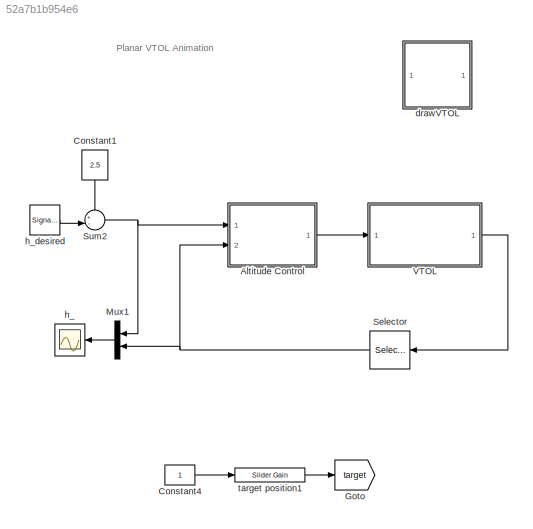
MODEL slx_52a7b1b954e6
KIND model
CONFIG AbsTol = auto
CONFIG EnableMultiTasking = on
CONFIG FixedStep = auto
CONFIG InitFcn = addpath ./..\nVTOL_param\nVTOLParamHW7
CONFIG MaxStep = auto
CONFIG MinStep = auto
CONFIG RelTol = 1e-3
CONFIG SampleTimeConstraint = Unconstrained
CONFIG Solver = ode45
CONFIG SolverName = ode45
CONFIG StartTime = 0.0
CONFIG StopTime = P.t_end
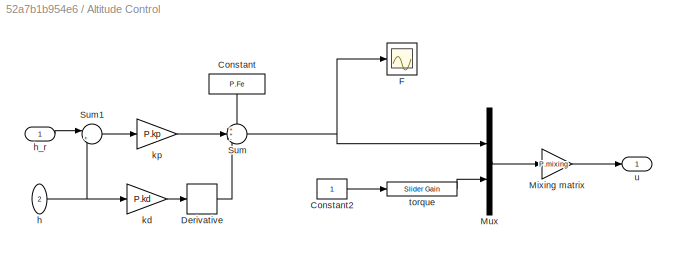
BLOCK [SubSystem] Altitude Control
  Ports = [2, 1]
  RequestExecContextInheritance = off
  Variant = off
BLOCK [Constant] Altitude Control/Constant
  Value = P.Fe
BLOCK [Constant] Altitude Control/Constant2
BLOCK [Derivative] Altitude Control/Derivative
BLOCK [Scope] Altitude Control/F
  NumInputPorts = 1
  Ports = [1]
  ScopeSpecificationString = Simulink.scopes.TimeScopeBlockCfg('CurrentConfiguration', extmgr.ConfigurationSet(extmgr.Configuration('Core','General UI',true),extmgr.Configuration('Core','Source UI',true),extmgr.Configuration('Sources','WiredSimulink',true,'DataLoggingSaveFormat','StructureWithTime','DataLoggingDecimation','1','DataLoggingDecimateData',true),extmgr.Configuration('Visuals','Time Domain',true,'SerializedDisplays...<+1656ch>
BLOCK [Gain] Altitude Control/Mixing matrix
  Gain = P.mixing
  Multiplication = Matrix(K*u)
  OutDataTypeStr = Inherit: Inherit via internal rule
  ParamDataTypeStr = Inherit: Inherit via internal rule
  SaturateOnIntegerOverflow = off
BLOCK [Mux] Altitude Control/Mux
  DisplayOption = bar
  Inputs = 2
  Ports = [2, 1]
BLOCK [Sum] Altitude Control/Sum
  IconShape = round
  InputSameDT = off
  Inputs = ++-
  OutDataTypeStr = Inherit: Inherit via internal rule
  Ports = [3, 1]
  SaturateOnIntegerOverflow = off
BLOCK [Sum] Altitude Control/Sum1
  IconShape = round
  InputSameDT = off
  Inputs = |+-
  OutDataTypeStr = Inherit: Inherit via internal rule
  Ports = [2, 1]
  SaturateOnIntegerOverflow = off
BLOCK [Inport] Altitude Control/h
  IconDisplay = Port number
  Port = 2
BLOCK [Inport] Altitude Control/h_r
  IconDisplay = Port number
BLOCK [Gain] Altitude Control/kd
  Gain = P.kd
  OutDataTypeStr = Inherit: Inherit via internal rule
  ParamDataTypeStr = Inherit: Inherit via internal rule
  SaturateOnIntegerOverflow = off
BLOCK [Gain] Altitude Control/kp
  Gain = P.kp
  OutDataTypeStr = Inherit: Inherit via internal rule
  ParamDataTypeStr = Inherit: Inherit via internal rule
  SaturateOnIntegerOverflow = off
BLOCK [Reference] Altitude Control/torque  REF=simulink/Math
Operations/Slider
Gain
  Ports = [1, 1]
  SourceBlock = simulink/Math\nOperations/Slider\nGain
  SourceType = Slider Gain
BLOCK [Outport] Altitude Control/u
  IconDisplay = Port number
BLOCK [Constant] Constant1
  Value = 2.5
BLOCK [Constant] Constant4
BLOCK [Goto] Goto
  GotoTag = target
  TagVisibility = global
BLOCK [Mux] Mux1
  DisplayOption = bar
  Inputs = 2
  Ports = [2, 1]
BLOCK [Selector] Selector
  IndexOptions = Index vector (dialog)
  Indices = [2]
  InputPortWidth = 3
  OutputSizes = 1
  Ports = [1, 1]
BLOCK [Sum] Sum2
  IconShape = round
  InputSameDT = off
  Inputs = +-|
  OutDataTypeStr = Inherit: Inherit via internal rule
  Ports = [2, 1]
  SaturateOnIntegerOverflow = off
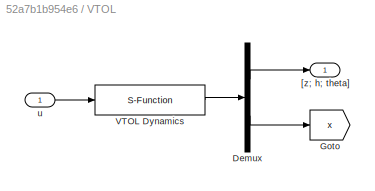
BLOCK [SubSystem] VTOL
  Ports = [1, 1]
  RequestExecContextInheritance = off
  Variant = off
BLOCK [Demux] VTOL/Demux
  DisplayOption = bar
  Outputs = [3;6]
  Ports = [1, 2]
BLOCK [Goto] VTOL/Goto
  GotoTag = x
  TagVisibility = global
BLOCK [S-Function] VTOL/VTOL Dynamics
  EnableBusSupport = off
  FunctionName = VTOL_dynamics
  Parameters = P
  Ports = [1, 1]
  SFcnIsStateOwnerBlock = off
  SFunctionDeploymentMode = off
BLOCK [Outport] VTOL/[z; h; theta]
  IconDisplay = Port number
BLOCK [Inport] VTOL/u
  IconDisplay = Port number
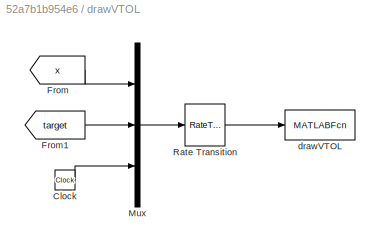
BLOCK [SubSystem] drawVTOL
  Ports = []
  RequestExecContextInheritance = off
  Variant = off
BLOCK [Clock] drawVTOL/Clock
BLOCK [From] drawVTOL/From
  GotoTag = x
  TagVisibility = global
BLOCK [From] drawVTOL/From1
  GotoTag = target
  TagVisibility = global
BLOCK [Mux] drawVTOL/Mux
  DisplayOption = bar
  Inputs = 3
  Ports = [3, 1]
BLOCK [RateTransition] drawVTOL/Rate Transition
  OutPortSampleTime = P.t_plot
BLOCK [MATLABFcn] drawVTOL/drawVTOL
  MATLABFcn = VTOL_animation(u,P)
  OutputDimensions = 0
  Ports = [1]
BLOCK [Scope] h_
  NumInputPorts = 1
  Ports = [1]
  ScopeSpecificationString = Simulink.scopes.TimeScopeBlockCfg('CurrentConfiguration', extmgr.ConfigurationSet(extmgr.Configuration('Core','General UI',true),extmgr.Configuration('Core','Source UI',true),extmgr.Configuration('Sources','WiredSimulink',true,'DataLoggingVariableName','ScopeData1','DataLoggingSaveFormat','StructureWithTime','DataLoggingDecimation','1','DataLoggingDecimateData',true),extmgr.Configuration('Visuals'...<+1742ch>
BLOCK [SignalGenerator] h_desired
  Amplitude = 2.5
  Frequency = .01666666666
  Ports = [0, 1]
  WaveForm = square
BLOCK [Reference] target position1  REF=simulink/Math
Operations/Slider
Gain
  Ports = [1, 1]
  SourceBlock = simulink/Math\nOperations/Slider\nGain
  SourceType = Slider Gain
ANNOTATION (root): Planar VTOL Animation
LINE Altitude Control/Constant2:1 -> Altitude Control/torque:1
LINE Altitude Control/Constant:1 -> Altitude Control/Sum:1
LINE Altitude Control/Derivative:1 -> Altitude Control/Sum:3
LINE Altitude Control/Mixing matrix:1 -> Altitude Control/u:1
LINE Altitude Control/Mux:1 -> Altitude Control/Mixing matrix:1
LINE Altitude Control/Sum1:1 -> Altitude Control/kp:1
NET Altitude Control/Sum:1 -> Altitude Control/F:1, Altitude Control/Mux:1
NET Altitude Control/h:1 -> Altitude Control/Sum1:2, Altitude Control/kd:1
LINE Altitude Control/h_r:1 -> Altitude Control/Sum1:1
LINE Altitude Control/kd:1 -> Altitude Control/Derivative:1
LINE Altitude Control/kp:1 -> Altitude Control/Sum:2
LINE Altitude Control/torque:1 -> Altitude Control/Mux:2
LINE Altitude Control:1 -> VTOL:1
LINE Constant1:1 -> Sum2:1
LINE Constant4:1 -> target position1:1
LINE Mux1:1 -> h_:1
NET Selector:1 -> Altitude Control:2, Mux1:2
NET Sum2:1 -> Altitude Control:1, Mux1:1
LINE VTOL/Demux:1 -> VTOL/[z; h; theta]:1
LINE VTOL/Demux:2 -> VTOL/Goto:1
LINE VTOL/VTOL Dynamics:1 -> VTOL/Demux:1
LINE VTOL/u:1 -> VTOL/VTOL Dynamics:1
LINE VTOL:1 -> Selector:1
LINE drawVTOL/Clock:1 -> drawVTOL/Mux:3
LINE drawVTOL/From1:1 -> drawVTOL/Mux:2
LINE drawVTOL/From:1 -> drawVTOL/Mux:1
LINE drawVTOL/Mux:1 -> drawVTOL/Rate Transition:1
LINE drawVTOL/Rate Transition:1 -> drawVTOL/drawVTOL:1
LINE h_desired:1 -> Sum2:2
LINE target position1:1 -> Goto:1
note: NET lines group one-source signal fan-out (src -> all destinations, sorted); 1:1 wires keep LINE
